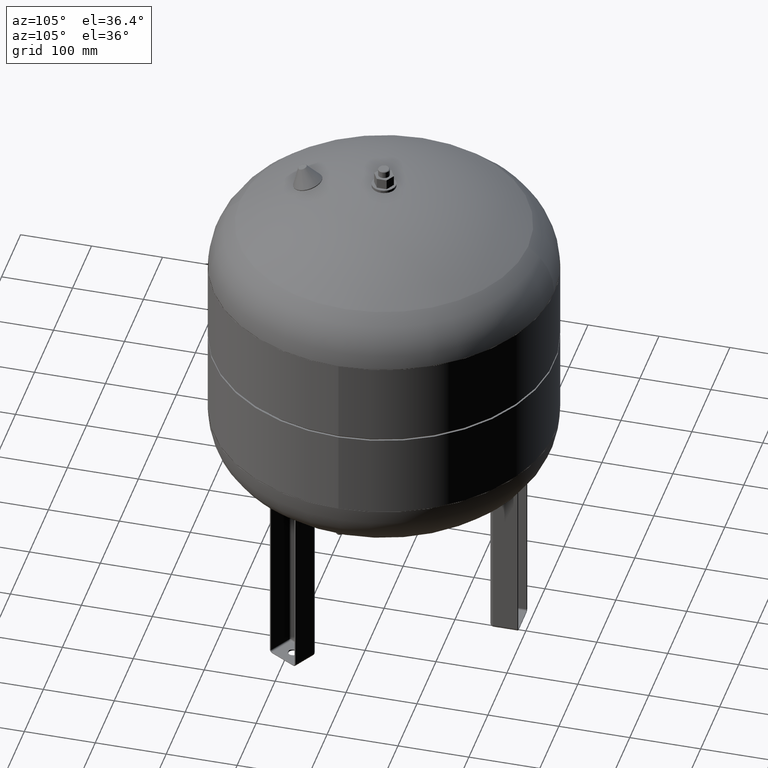
[diagram: clean part render]
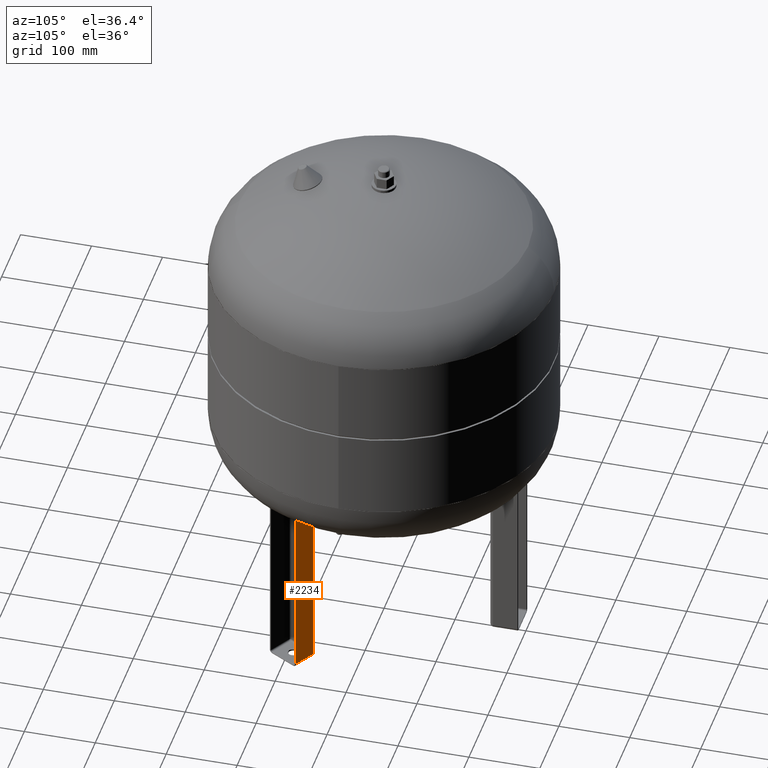
[diagram: same view with one face highlighted and labeled with its STEP entity id]
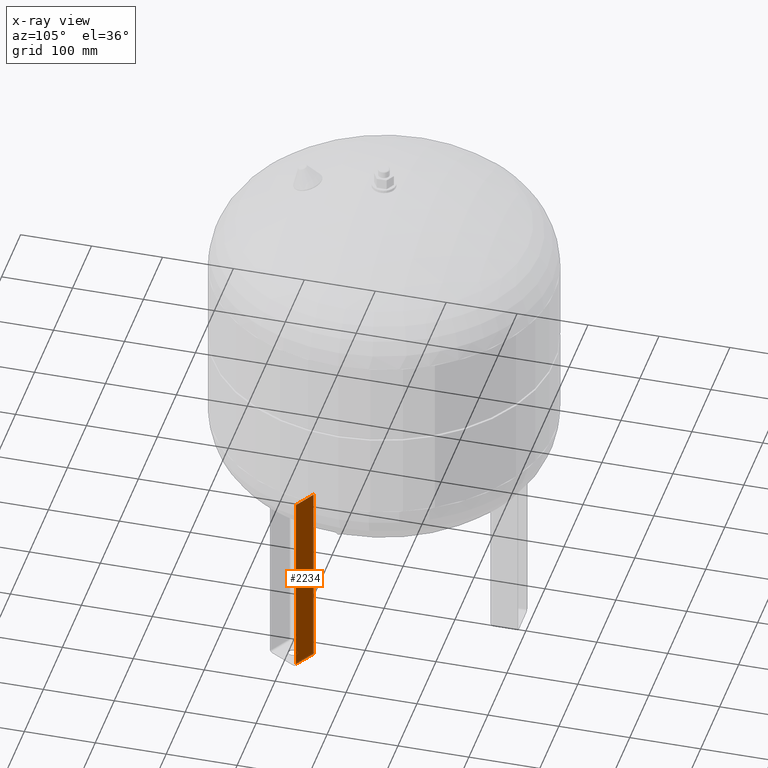
[diagram: x-ray of the same camera — body ghosted, the highlighted face saturated]
A machine part, auxiliary view. The second image highlights one B-rep face of the part: STEP entity #2234.
The next image is the same camera in x-ray: the body ghosted, the highlighted face saturated — about 0% of this face is hidden behind the body in this view.
In plain terms, the highlighted planar face has unit normal (0.5, 0.866, 0).
Its self-contained STEP definition (entity closure, byte-faithful):
#1296=CARTESIAN_POINT('',(180.941941036073300,-75.599364905389095,274.0));
#1297=VERTEX_POINT('',#1296);
#1305=CARTESIAN_POINT('',(151.497077307402380,-58.599364905389073,274.0));
#1306=VERTEX_POINT('',#1305);
#1307=CARTESIAN_POINT('',(151.497077307402380,-58.599364905389073,274.0));
#1308=DIRECTION('',(0.866025403784438,-0.500000000000000,0.0));
#1309=VECTOR('',#1308,34.000000000000021);
#1310=LINE('',#1307,#1309);
#1311=EDGE_CURVE('',#1306,#1297,#1310,.T.);
#1741=CARTESIAN_POINT('',(180.941941036073300,-75.599364905389081,5.000000000000004));
#1742=VERTEX_POINT('',#1741);
#1769=CARTESIAN_POINT('',(180.941941036073300,-75.599364905389081,5.000000000000004));
#1770=DIRECTION('',(0.0,0.0,1.0));
#1771=VECTOR('',#1770,269.0);
#1772=LINE('',#1769,#1771);
#1773=EDGE_CURVE('',#1742,#1297,#1772,.T.);
#1969=CARTESIAN_POINT('',(151.497077307402380,-58.599364905389073,5.000000000000004));
#1970=VERTEX_POINT('',#1969);
#1978=CARTESIAN_POINT('',(151.497077307402380,-58.599364905389073,5.000000000000004));
#1979=DIRECTION('',(0.866025403784439,-0.500000000000000,0.0));
#1980=VECTOR('',#1979,34.000000000000014);
#1981=LINE('',#1978,#1980);
#1982=EDGE_CURVE('',#1970,#1742,#1981,.T.);
#2104=CARTESIAN_POINT('',(151.497077307402380,-58.599364905389073,5.000000000000004));
#2105=DIRECTION('',(0.0,0.0,1.0));
#2106=VECTOR('',#2105,269.0);
#2107=LINE('',#2104,#2106);
#2108=EDGE_CURVE('',#1970,#1306,#2107,.T.);
#2223=CARTESIAN_POINT('',(147.166950288480190,-56.099364905389073,4.592425E-015));
#2224=DIRECTION('',(0.500000000000000,0.866025403784438,1.836970E-016));
#2225=DIRECTION('',(-0.866025403784438,0.500000000000000,-3.059170E-032));
#2226=AXIS2_PLACEMENT_3D('',#2223,#2224,#2225);
#2227=PLANE('',#2226);
#2228=ORIENTED_EDGE('',*,*,#1773,.F.);
#2229=ORIENTED_EDGE('',*,*,#1982,.F.);
#2230=ORIENTED_EDGE('',*,*,#2108,.T.);
#2231=ORIENTED_EDGE('',*,*,#1311,.T.);
#2232=EDGE_LOOP('',(#2228,#2229,#2230,#2231));
#2233=FACE_OUTER_BOUND('',#2232,.T.);
#2234=ADVANCED_FACE('',(#2233),#2227,.T.);